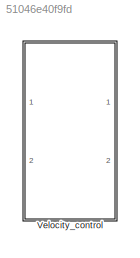
MODEL slx_51046e40f9fd
KIND model
CONFIG AbsTol = auto
CONFIG EnableMultiTasking = off
CONFIG FixedStep = 0.001
CONFIG MaxStep = auto
CONFIG MinStep = auto
CONFIG PostLoadFcn = , if any(exist('dsrtsu_mdlpostloadfcn', 'file') == [2, 3, 6]), try dsrtsu_mdlpostloadfcn('Execute', bdroot); catch fprintf('Error in PostLoadFcn (dsrtsu_mdlpostloadfcn) for model "%s":\n %s\n', bdroot, lasterr); end, end, \n
CONFIG RelTol = 1e-3
CONFIG SampleTimeConstraint = Unconstrained
CONFIG Solver = ode1
CONFIG SolverName = ode1
CONFIG StartTime = 0.0
CONFIG StopTime = Inf
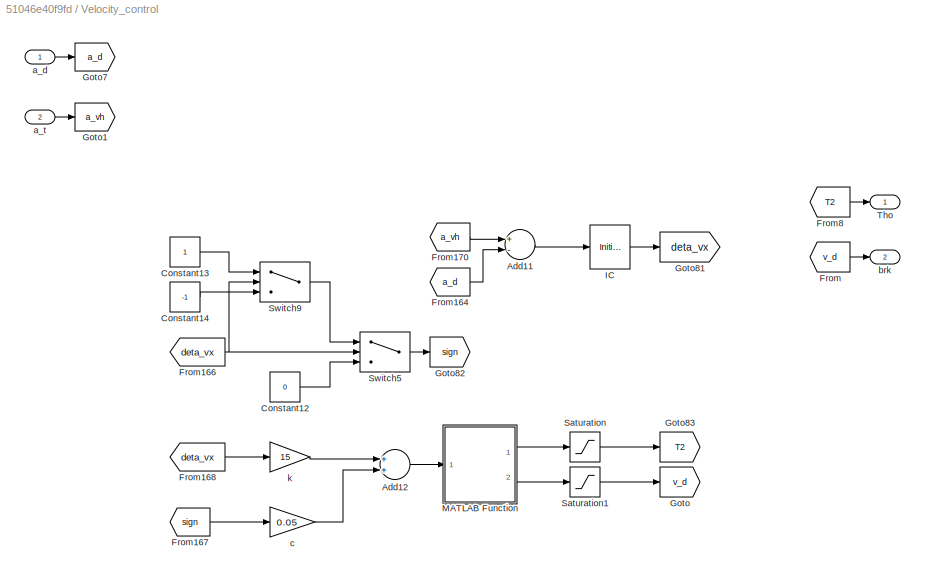
BLOCK [SubSystem] Velocity_control
  Ports = [2, 2]
  RequestExecContextInheritance = off
BLOCK [Sum] Velocity_control/Add11
  InputSameDT = off
  Inputs = +-
  OutDataTypeStr = Inherit: Inherit via internal rule
  Ports = [2, 1]
  SaturateOnIntegerOverflow = off
BLOCK [Sum] Velocity_control/Add12
  InputSameDT = off
  OutDataTypeStr = Inherit: Inherit via internal rule
  Ports = [2, 1]
  SaturateOnIntegerOverflow = off
BLOCK [Constant] Velocity_control/Constant12
  Value = 0
BLOCK [Constant] Velocity_control/Constant13
BLOCK [Constant] Velocity_control/Constant14
  Value = -1
BLOCK [From] Velocity_control/From
  GotoTag = v_d
BLOCK [From] Velocity_control/From164
  GotoTag = a_d
BLOCK [From] Velocity_control/From166
  GotoTag = deta_vx
BLOCK [From] Velocity_control/From167
  GotoTag = sign
BLOCK [From] Velocity_control/From168
  GotoTag = deta_vx
BLOCK [From] Velocity_control/From170
  GotoTag = a_vh
BLOCK [From] Velocity_control/From8
  GotoTag = T2
BLOCK [Goto] Velocity_control/Goto
  GotoTag = v_d
BLOCK [Goto] Velocity_control/Goto1
  GotoTag = a_vh
BLOCK [Goto] Velocity_control/Goto7
  GotoTag = a_d
BLOCK [Goto] Velocity_control/Goto81
  GotoTag = deta_vx
BLOCK [Goto] Velocity_control/Goto82
  GotoTag = sign
BLOCK [Goto] Velocity_control/Goto83
  GotoTag = T2
BLOCK [InitialCondition] Velocity_control/IC
  Value = 0
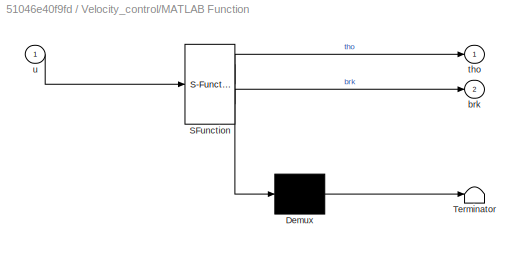
BLOCK [SubSystem] Velocity_control/MATLAB Function
  ErrorFcn = Stateflow.Translate.translate
  PermitHierarchicalResolution = ExplicitOnly
  Ports = [1, 2]
  RequestExecContextInheritance = off
  SFBlockType = MATLAB Function
  TreatAsAtomicUnit = on
BLOCK [Demux] Velocity_control/MATLAB Function/ Demux 
  Outputs = 1
  Ports = [1, 1]
BLOCK [S-Function] Velocity_control/MATLAB Function/ SFunction 
  EnableBusSupport = off
  FunctionName = sf_sfun
  PortCounts = [1 3]
  Ports = [1, 3]
  SFcnIsStateOwnerBlock = off
  SFunctionDeploymentMode = off
  Tag = Stateflow S-Function velocity_control 2
BLOCK [Terminator] Velocity_control/MATLAB Function/ Terminator 
BLOCK [Outport] Velocity_control/MATLAB Function/brk
  IconDisplay = Port number
  Port = 2
BLOCK [Outport] Velocity_control/MATLAB Function/tho
  IconDisplay = Port number
BLOCK [Inport] Velocity_control/MATLAB Function/u
  IconDisplay = Port number
BLOCK [Saturate] Velocity_control/Saturation
  InputPortMap = u0
  LowerLimit = 0
  Ports = [1, 1]
  UpperLimit = 1
BLOCK [Saturate] Velocity_control/Saturation1
  InputPortMap = u0
  LowerLimit = -8
  Ports = [1, 1]
  UpperLimit = 0
BLOCK [Switch] Velocity_control/Switch5
  Criteria = u2 ~= 0
  InputSameDT = off
  SaturateOnIntegerOverflow = off
BLOCK [Switch] Velocity_control/Switch9
  Criteria = u2 > Threshold
  InputSameDT = off
  SaturateOnIntegerOverflow = off
BLOCK [Outport] Velocity_control/Tho
  IconDisplay = Port number
BLOCK [Inport] Velocity_control/a_d
  IconDisplay = Port number
BLOCK [Inport] Velocity_control/a_t
  IconDisplay = Port number
  Port = 2
BLOCK [Outport] Velocity_control/brk
  IconDisplay = Port number
  Port = 2
BLOCK [Gain] Velocity_control/c
  Gain = 0.05
  OutDataTypeStr = Inherit: Inherit via internal rule
  ParamDataTypeStr = Inherit: Inherit via internal rule
  SaturateOnIntegerOverflow = off
BLOCK [Gain] Velocity_control/k
  Gain = 15
  OutDataTypeStr = Inherit: Inherit via internal rule
  ParamDataTypeStr = Inherit: Inherit via internal rule
  SaturateOnIntegerOverflow = off
LINE Velocity_control/Add11:1 -> Velocity_control/IC:1
LINE Velocity_control/Add12:1 -> Velocity_control/MATLAB Function:1
LINE Velocity_control/Constant12:1 -> Velocity_control/Switch5:3
LINE Velocity_control/Constant13:1 -> Velocity_control/Switch9:1
LINE Velocity_control/Constant14:1 -> Velocity_control/Switch9:3
LINE Velocity_control/From164:1 -> Velocity_control/Add11:2
NET Velocity_control/From166:1 -> Velocity_control/Switch5:2, Velocity_control/Switch9:2
LINE Velocity_control/From167:1 -> Velocity_control/c:1
LINE Velocity_control/From168:1 -> Velocity_control/k:1
LINE Velocity_control/From170:1 -> Velocity_control/Add11:1
LINE Velocity_control/From8:1 -> Velocity_control/Tho:1
LINE Velocity_control/From:1 -> Velocity_control/brk:1
LINE Velocity_control/IC:1 -> Velocity_control/Goto81:1
LINE Velocity_control/MATLAB Function:1 -> Velocity_control/Saturation:1
LINE Velocity_control/MATLAB Function:2 -> Velocity_control/Saturation1:1
LINE Velocity_control/Saturation1:1 -> Velocity_control/Goto:1
LINE Velocity_control/Saturation:1 -> Velocity_control/Goto83:1
LINE Velocity_control/Switch5:1 -> Velocity_control/Goto82:1
LINE Velocity_control/Switch9:1 -> Velocity_control/Switch5:1
LINE Velocity_control/a_d:1 -> Velocity_control/Goto7:1
LINE Velocity_control/a_t:1 -> Velocity_control/Goto1:1
LINE Velocity_control/c:1 -> Velocity_control/Add12:2
LINE Velocity_control/k:1 -> Velocity_control/Add12:1
note: NET lines group one-source signal fan-out (src -> all destinations, sorted); 1:1 wires keep LINE
CHART Velocity_control/MATLAB Function states=1 transitions=1
  STATE_LABEL 'eML_blk_kernel()'
  STATE_LABEL 'SCRIPT:\nfunction [tho,brk] = fcn(u)\nif u >= 0\n    brk = 0;\n    tho=0.01*u;\nelse\n    tho=0;\n    brk = 0.4*u;\nend\n'
